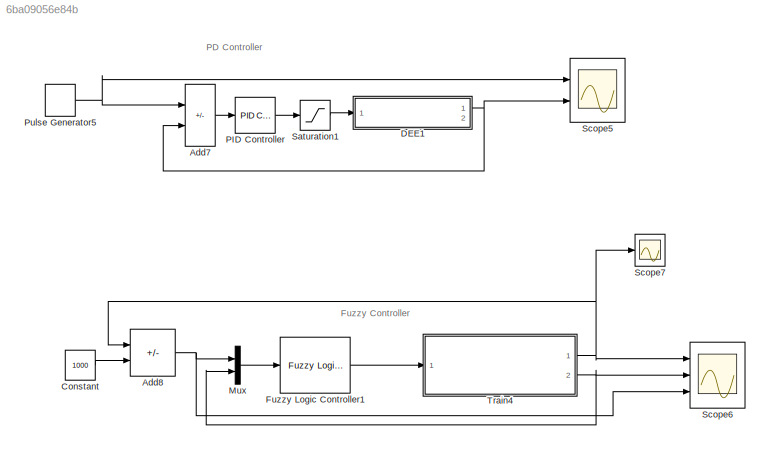
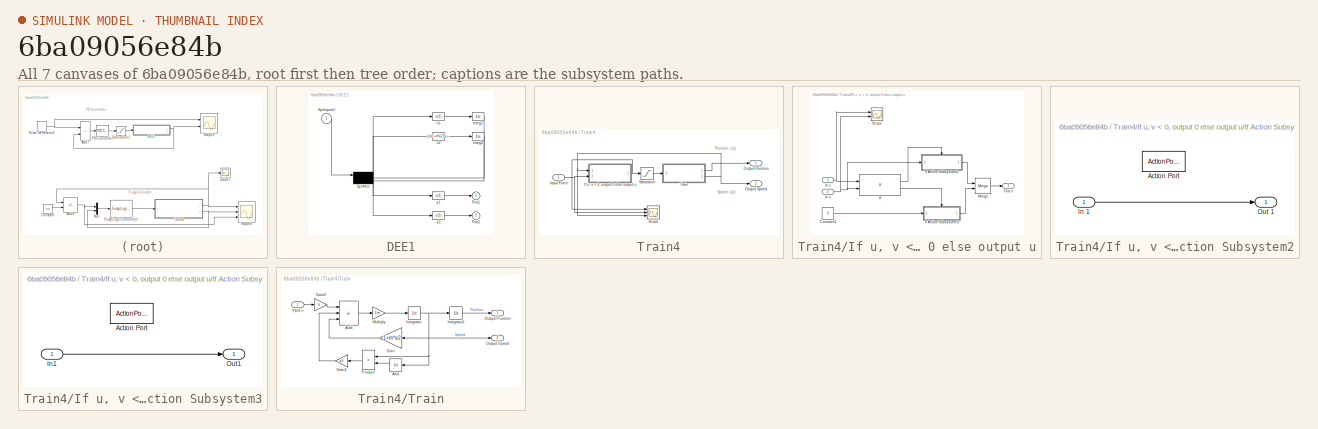
[diagram: thumbnail index - all 7 canvases of the model, root first then tree order]
MODEL slx_6ba09056e84b
KIND model
CONFIG AbsTol = auto
CONFIG EnableMultiTasking = off
CONFIG FixedStep = auto
CONFIG MaxStep = auto
CONFIG MinStep = auto
CONFIG RelTol = 1e-3
CONFIG SampleTimeConstraint = Unconstrained
CONFIG SolverName = VariableStepAuto
CONFIG StartTime = 0.0
CONFIG StopTime = 200
BLOCK [Sum] Add7
  IconShape = rectangular
  Inputs = +-
  Ports = [2, 1]
BLOCK [Sum] Add8
  IconShape = rectangular
  Inputs = -+
  Ports = [2, 1]
BLOCK [Constant] Constant
  Value = 1000
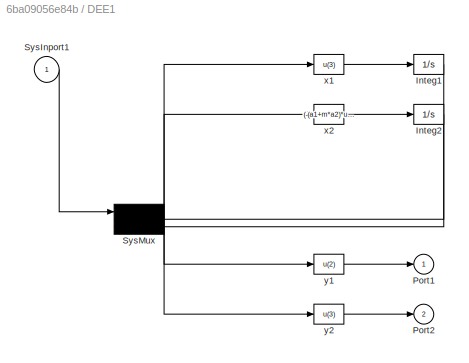
BLOCK [SubSystem] DEE1
  OpenFcn = diffeqed
  Ports = [1, 2]
  RequestExecContextInheritance = off
BLOCK [Integrator] DEE1/Integ1
  Ports = [1, 1]
BLOCK [Integrator] DEE1/Integ2
  Ports = [1, 1]
BLOCK [Outport] DEE1/Port1
BLOCK [Outport] DEE1/Port2
  Port = 2
BLOCK [Inport] DEE1/SysInport1
BLOCK [Mux] DEE1/SysMux
  Inputs = 3
  Ports = [3, 1]
BLOCK [Fcn] DEE1/x1
  Expr = u(3)
BLOCK [Fcn] DEE1/x2
  Expr = (-(a1+m*a2)*u(3)-a3*u(3)*abs(u(3))+b*u)/m
BLOCK [Fcn] DEE1/y1
  Expr = u(2)
BLOCK [Fcn] DEE1/y2
  Expr = u(3)
BLOCK [Reference] Fuzzy Logic Controller1  REF=fuzblock/Fuzzy Logic   (lib defined in mdl_858b3b3e7478)
Controller
  Ports = [1, 1]
  SourceBlock = fuzblock/Fuzzy Logic \nController
  SourceProductBaseCode = FL
  SourceType = Fuzzy Inference System
BLOCK [Mux] Mux
  DisplayOption = bar
  Inputs = 2
  Ports = [2, 1]
BLOCK [Reference] PID Controller  REF=slpidlib/PID Controller
  Ports = [1, 1]
  SourceBlock = slpidlib/PID Controller
  SourceProductBaseCode = SL
  SourceType = PID 1dof
BLOCK [DiscretePulseGenerator] Pulse Generator5
  Amplitude = 10
  Period = 500
  Ports = [0, 1]
  PulseType = Time based
  PulseWidth = 40
BLOCK [Saturate] Saturation1
BLOCK [Scope] Scope5
  Floating = off
  NumInputPorts = 2
  Ports = [2]
  ScopeSpecificationString = Simulink.scopes.TimeScopeBlockCfg('CurrentConfiguration', extmgr.ConfigurationSet(extmgr.Configuration('Core','General UI',true),extmgr.Configuration('Core','Source UI',true),extmgr.Configuration('Sources','WiredSimulink',true,'DataLoggingVariableName','ScopeData6'),extmgr.Configuration('Visuals','Time Domain',true,'SerializedDisplays',{struct('MinYLimReal','-10.4351','MaxYLimReal','20.1379','YLab...<+1495ch>
BLOCK [Scope] Scope6
  Floating = off
  NumInputPorts = 3
  Ports = [3]
  ScopeSpecificationString = Simulink.scopes.TimeScopeBlockCfg('CurrentConfiguration', extmgr.ConfigurationSet(extmgr.Configuration('Core','General UI',true),extmgr.Configuration('Core','Source UI',true),extmgr.Configuration('Sources','WiredSimulink',true,'DataLoggingVariableName','ScopeData7'),extmgr.Configuration('Visuals','Time Domain',true,'SerializedDisplays',{struct('MinYLimReal','-123.96504','MaxYLimReal','1115.68537',...<+2793ch>
BLOCK [Scope] Scope7
  Floating = off
  NumInputPorts = 1
  Ports = [1]
  ScopeSpecificationString = Simulink.scopes.TimeScopeBlockCfg('CurrentConfiguration', extmgr.ConfigurationSet(extmgr.Configuration('Core','General UI',true),extmgr.Configuration('Core','Source UI',true),extmgr.Configuration('Sources','WiredSimulink',true,'DataLoggingVariableName','ScopeData8'),extmgr.Configuration('Visuals','Time Domain',true,'SerializedDisplays',{struct('MinYLimReal','-67.59008','MaxYLimReal','608.3107','YL...<+1409ch>
BLOCK [SubSystem] Train4
  Ports = [1, 2]
  RequestExecContextInheritance = off
BLOCK [SubSystem] Train4/If u, v < 0, output 0 else output u
  Ports = [2, 1]
  RequestExecContextInheritance = off
BLOCK [Constant] Train4/If u, v < 0, output 0 else output u/Constant1
  Value = 0
BLOCK [If] Train4/If u, v < 0, output 0 else output u/If
  IfExpression = u1 >= 0 | u2 >= 0
  NumInputs = 2
  Ports = [2, 2]
BLOCK [SubSystem] Train4/If u, v < 0, output 0 else output u/If Action Subsystem2
  Ports = [1, 1, 0, 0, 0, 0, 0, 1]
  RequestExecContextInheritance = off
  TreatAsAtomicUnit = on
BLOCK [ActionPort] Train4/If u, v < 0, output 0 else output u/If Action Subsystem2/Action Port
  ActionPortLabel = if(u1 >= 0 | u2 >= 0)
BLOCK [Inport] Train4/If u, v < 0, output 0 else output u/If Action Subsystem2/In 1
BLOCK [Outport] Train4/If u, v < 0, output 0 else output u/If Action Subsystem2/Out 1
BLOCK [SubSystem] Train4/If u, v < 0, output 0 else output u/If Action Subsystem3
  Ports = [1, 1, 0, 0, 0, 0, 0, 1]
  RequestExecContextInheritance = off
  TreatAsAtomicUnit = on
BLOCK [ActionPort] Train4/If u, v < 0, output 0 else output u/If Action Subsystem3/Action Port
  ActionPortLabel = else
BLOCK [Inport] Train4/If u, v < 0, output 0 else output u/If Action Subsystem3/In1
BLOCK [Outport] Train4/If u, v < 0, output 0 else output u/If Action Subsystem3/Out1
BLOCK [Inport] Train4/If u, v < 0, output 0 else output u/In u
  Port = 2
BLOCK [Inport] Train4/If u, v < 0, output 0 else output u/In v
BLOCK [Merge] Train4/If u, v < 0, output 0 else output u/Merge
  Ports = [2, 1]
BLOCK [Outport] Train4/If u, v < 0, output 0 else output u/Out u
BLOCK [Scope] Train4/If u, v < 0, output 0 else output u/Scope
  Floating = off
  NumInputPorts = 2
  Ports = [2]
  ScopeSpecificationString = Simulink.scopes.TimeScopeBlockCfg('CurrentConfiguration', extmgr.ConfigurationSet(extmgr.Configuration('Core','General UI',true),extmgr.Configuration('Core','Source UI',true),extmgr.Configuration('Sources','WiredSimulink',true,'DataLoggingVariableName','ScopeData2'),extmgr.Configuration('Visuals','Time Domain',true,'SerializedDisplays',{struct('MinYLimReal','-5.6463','MaxYLimReal','6.18292','YLabe...<+1395ch>
BLOCK [Inport] Train4/Input Force
BLOCK [Outport] Train4/Output Position
BLOCK [Outport] Train4/Output Speed
  Port = 2
BLOCK [Saturate] Train4/Saturation
  LowerLimit = -1
  UpperLimit = 1
BLOCK [Scope] Train4/Scope
  Floating = off
  NumInputPorts = 3
  Ports = [3]
  ScopeSpecificationString = Simulink.scopes.TimeScopeBlockCfg('CurrentConfiguration', extmgr.ConfigurationSet(extmgr.Configuration('Core','General UI',true),extmgr.Configuration('Core','Source UI',true),extmgr.Configuration('Sources','WiredSimulink',true,'DataLoggingVariableName','ScopeData1'),extmgr.Configuration('Visuals','Time Domain',true,'SerializedDisplays',{struct('MinYLimReal','-5.6463','MaxYLimReal','6.18292','YLabe...<+1447ch>
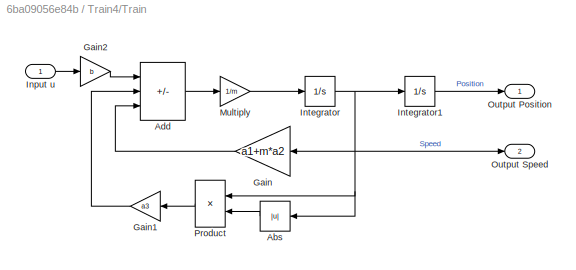
BLOCK [SubSystem] Train4/Train
  Ports = [1, 2]
  RequestExecContextInheritance = off
BLOCK [Abs] Train4/Train/Abs
  SaturateOnIntegerOverflow = off
BLOCK [Sum] Train4/Train/Add
  IconShape = rectangular
  Inputs = +--
  Ports = [3, 1]
BLOCK [Gain] Train4/Train/Gain
  Gain = a1+m*a2
BLOCK [Gain] Train4/Train/Gain1
  Gain = a3
BLOCK [Gain] Train4/Train/Gain2
  Gain = b
BLOCK [Inport] Train4/Train/Input u
BLOCK [Integrator] Train4/Train/Integrator
  Ports = [1, 1]
BLOCK [Integrator] Train4/Train/Integrator1
  Ports = [1, 1]
BLOCK [Gain] Train4/Train/Multiply
  Gain = 1/m
BLOCK [Outport] Train4/Train/Output Position
BLOCK [Outport] Train4/Train/Output Speed
  Port = 2
BLOCK [Product] Train4/Train/Product
  Ports = [2, 1]
ANNOTATION (root): Fuzzy Controller
ANNOTATION (root): PD Controller
ANNOTATION Train4: Position: x(1)
ANNOTATION Train4: Speed: x(2)
LINE Add7:1 -> PID Controller:1
NET Add8:1 -> Mux:1, Scope6:3
LINE Constant:1 -> Add8:2
LINE DEE1/Integ1:1 -> DEE1/SysMux:2
LINE DEE1/Integ2:1 -> DEE1/SysMux:3
LINE DEE1/SysInport1:1 -> DEE1/SysMux:1
NET DEE1/SysMux:1 -> DEE1/x1:1, DEE1/x2:1, DEE1/y1:1, DEE1/y2:1
LINE DEE1/x1:1 -> DEE1/Integ1:1
LINE DEE1/x2:1 -> DEE1/Integ2:1
LINE DEE1/y1:1 -> DEE1/Port1:1
LINE DEE1/y2:1 -> DEE1/Port2:1
NET DEE1:1 -> Add7:2, Scope5:2
LINE Fuzzy Logic Controller1:1 -> Train4:1
LINE Mux:1 -> Fuzzy Logic Controller1:1
LINE PID Controller:1 -> Saturation1:1
NET Pulse Generator5:1 -> Add7:1, Scope5:1
LINE Saturation1:1 -> DEE1:1
LINE Train4/If u, v < 0, output 0 else output u/Constant1:1 -> Train4/If u, v < 0, output 0 else output u/If Action Subsystem3:1
LINE Train4/If u, v < 0, output 0 else output u/If Action Subsystem2/In 1:1 -> Train4/If u, v < 0, output 0 else output u/If Action Subsystem2/Out 1:1
LINE Train4/If u, v < 0, output 0 else output u/If Action Subsystem2:1 -> Train4/If u, v < 0, output 0 else output u/Merge:1
LINE Train4/If u, v < 0, output 0 else output u/If Action Subsystem3/In1:1 -> Train4/If u, v < 0, output 0 else output u/If Action Subsystem3/Out1:1
LINE Train4/If u, v < 0, output 0 else output u/If Action Subsystem3:1 -> Train4/If u, v < 0, output 0 else output u/Merge:2
LINE Train4/If u, v < 0, output 0 else output u/If:1 -> Train4/If u, v < 0, output 0 else output u/If Action Subsystem2:ifaction
LINE Train4/If u, v < 0, output 0 else output u/If:2 -> Train4/If u, v < 0, output 0 else output u/If Action Subsystem3:ifaction
NET Train4/If u, v < 0, output 0 else output u/In u:1 -> Train4/If u, v < 0, output 0 else output u/If Action Subsystem2:1, Train4/If u, v < 0, output 0 else output u/If:2, Train4/If u, v < 0, output 0 else output u/Scope:2
NET Train4/If u, v < 0, output 0 else output u/In v:1 -> Train4/If u, v < 0, output 0 else output u/If:1, Train4/If u, v < 0, output 0 else output u/Scope:1
LINE Train4/If u, v < 0, output 0 else output u/Merge:1 -> Train4/If u, v < 0, output 0 else output u/Out u:1
NET Train4/If u, v < 0, output 0 else output u:1 -> Train4/Saturation:1, Train4/Scope:1
NET Train4/Input Force:1 -> Train4/If u, v < 0, output 0 else output u:2, Train4/Scope:2
LINE Train4/Saturation:1 -> Train4/Train:1
LINE Train4/Train/Abs:1 -> Train4/Train/Product:2
LINE Train4/Train/Add:1 -> Train4/Train/Multiply:1
LINE Train4/Train/Gain1:1 -> Train4/Train/Add:2
LINE Train4/Train/Gain2:1 -> Train4/Train/Add:1
LINE Train4/Train/Gain:1 -> Train4/Train/Add:3
LINE Train4/Train/Input u:1 -> Train4/Train/Gain2:1
LINE Train4/Train/Integrator1:1 -> Train4/Train/Output Position:1
NET Train4/Train/Integrator:1 -> Train4/Train/Abs:1, Train4/Train/Gain:1, Train4/Train/Integrator1:1, Train4/Train/Output Speed:1, Train4/Train/Product:1
LINE Train4/Train/Multiply:1 -> Train4/Train/Integrator:1
LINE Train4/Train/Product:1 -> Train4/Train/Gain1:1
LINE Train4/Train:1 -> Train4/Output Position:1
NET Train4/Train:2 -> Train4/If u, v < 0, output 0 else output u:1, Train4/Output Speed:1, Train4/Scope:3
NET Train4:1 -> Add8:1, Scope6:1, Scope7:1
NET Train4:2 -> Mux:2, Scope6:2
note: NET lines group one-source signal fan-out (src -> all destinations, sorted); 1:1 wires keep LINE
